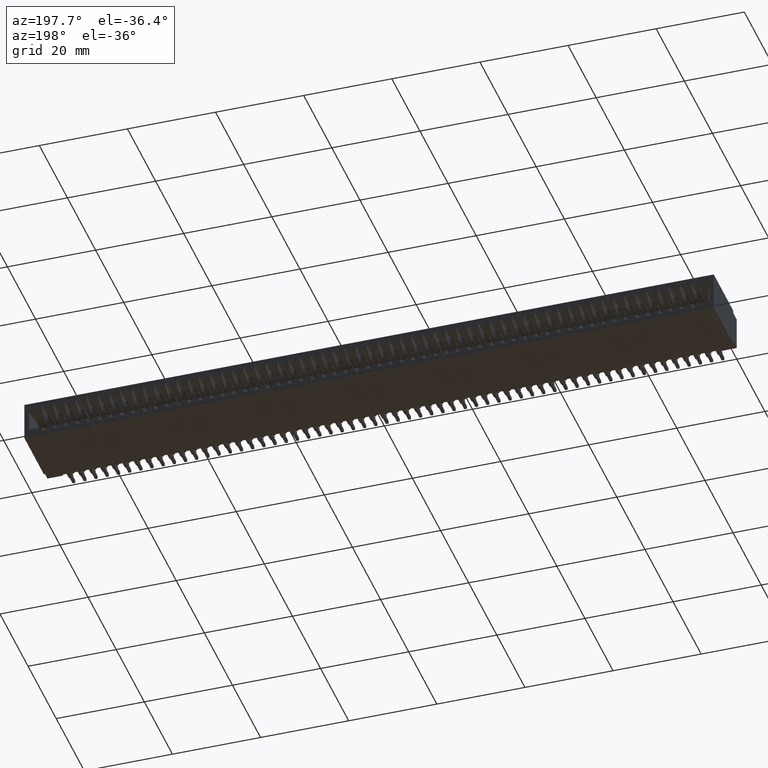
[diagram: clean part render]
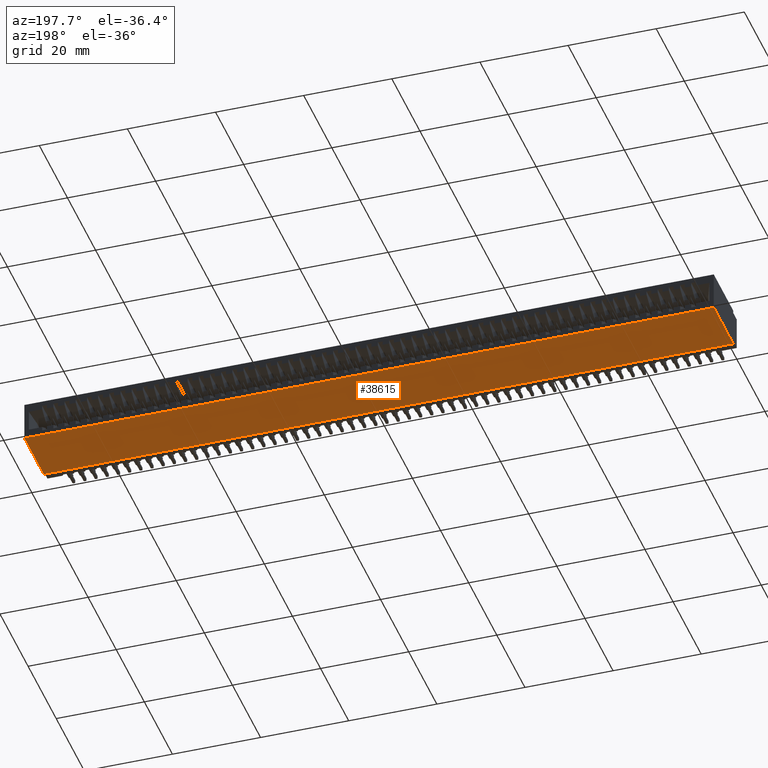
[diagram: same view with one face highlighted and labeled with its STEP entity id]
A machine part, auxiliary view. The second image highlights one B-rep face of the part: STEP entity #38615.
In plain terms, the highlighted planar face has unit normal (0, 0, 1).
Its self-contained STEP definition (entity closure, byte-faithful):
#2937 = CARTESIAN_POINT ( 'NONE',  ( 6.160000000000000142, 0.6449999999999999067, -0.3499999999999999778 ) ) ;
#4851 = ORIENTED_EDGE ( 'NONE', *, *, #85586, .F. ) ;
#5652 = CARTESIAN_POINT ( 'NONE',  ( 0.0000000000000000000, 0.6449999999999999067, -0.3499999999999999778 ) ) ;
#5759 = CARTESIAN_POINT ( 'NONE',  ( 0.0000000000000000000, 0.6449999999999999067, -0.3499999999999999778 ) ) ;
#7382 = VECTOR ( 'NONE', #13491, 39.37007874015748143 ) ;
#10544 = CARTESIAN_POINT ( 'NONE',  ( 6.160000000000000142, 0.1000000000000000056, -0.3499999999999999778 ) ) ;
#12501 = CARTESIAN_POINT ( 'NONE',  ( 0.0000000000000000000, 0.6449999999999999067, -0.3499999999999999778 ) ) ;
#12983 = AXIS2_PLACEMENT_3D ( 'NONE', #5759, #42136, #26905 ) ;
#13405 = EDGE_CURVE ( 'NONE', #38973, #52798, #87124, .T. ) ;
#13491 = DIRECTION ( 'NONE',  ( -1.000000000000000000, -0.0000000000000000000, -0.0000000000000000000 ) ) ;
#14939 = ORIENTED_EDGE ( 'NONE', *, *, #76099, .T. ) ;
#22372 = ORIENTED_EDGE ( 'NONE', *, *, #28504, .T. ) ;
#22850 = VERTEX_POINT ( 'NONE', #31461 ) ;
#23148 = CARTESIAN_POINT ( 'NONE',  ( 0.0000000000000000000, 0.6449999999999999067, -0.3499999999999999778 ) ) ;
#26905 = DIRECTION ( 'NONE',  ( 1.000000000000000000, 0.0000000000000000000, -0.0000000000000000000 ) ) ;
#28504 = EDGE_CURVE ( 'NONE', #94375, #22850, #83429, .T. ) ;
#30974 = DIRECTION ( 'NONE',  ( -0.0000000000000000000, -1.000000000000000000, -0.0000000000000000000 ) ) ;
#31461 = CARTESIAN_POINT ( 'NONE',  ( 0.0000000000000000000, 0.1000000000000000056, -0.3499999999999999778 ) ) ;
#33549 = CARTESIAN_POINT ( 'NONE',  ( 6.160000000000000142, 0.6449999999999999067, -0.3499999999999999778 ) ) ;
#33795 = FACE_OUTER_BOUND ( 'NONE', #93441, .T. ) ;
#38615 = ADVANCED_FACE ( 'NONE', ( #33795 ), #72052, .F. ) ;
#38973 = VERTEX_POINT ( 'NONE', #33549 ) ;
#42136 = DIRECTION ( 'NONE',  ( 0.0000000000000000000, 0.0000000000000000000, 1.000000000000000000 ) ) ;
#44796 = ORIENTED_EDGE ( 'NONE', *, *, #13405, .F. ) ;
#47590 = LINE ( 'NONE', #2937, #69193 ) ;
#48368 = VECTOR ( 'NONE', #76547, 39.37007874015748143 ) ;
#52798 = VERTEX_POINT ( 'NONE', #23148 ) ;
#57715 = LINE ( 'NONE', #5652, #90345 ) ;
#69193 = VECTOR ( 'NONE', #30974, 39.37007874015748143 ) ;
#70648 = CARTESIAN_POINT ( 'NONE',  ( 6.160000000000000142, 0.1000000000000000056, -0.3499999999999999778 ) ) ;
#72052 = PLANE ( 'NONE',  #12983 ) ;
#76099 = EDGE_CURVE ( 'NONE', #38973, #94375, #47590, .T. ) ;
#76547 = DIRECTION ( 'NONE',  ( -1.000000000000000000, -0.0000000000000000000, -0.0000000000000000000 ) ) ;
#83429 = LINE ( 'NONE', #70648, #48368 ) ;
#85586 = EDGE_CURVE ( 'NONE', #52798, #22850, #57715, .T. ) ;
#87124 = LINE ( 'NONE', #12501, #7382 ) ;
#88119 = DIRECTION ( 'NONE',  ( -0.0000000000000000000, -1.000000000000000000, -0.0000000000000000000 ) ) ;
#90345 = VECTOR ( 'NONE', #88119, 39.37007874015748143 ) ;
#93441 = EDGE_LOOP ( 'NONE', ( #14939, #22372, #4851, #44796 ) ) ;
#94375 = VERTEX_POINT ( 'NONE', #10544 ) ;